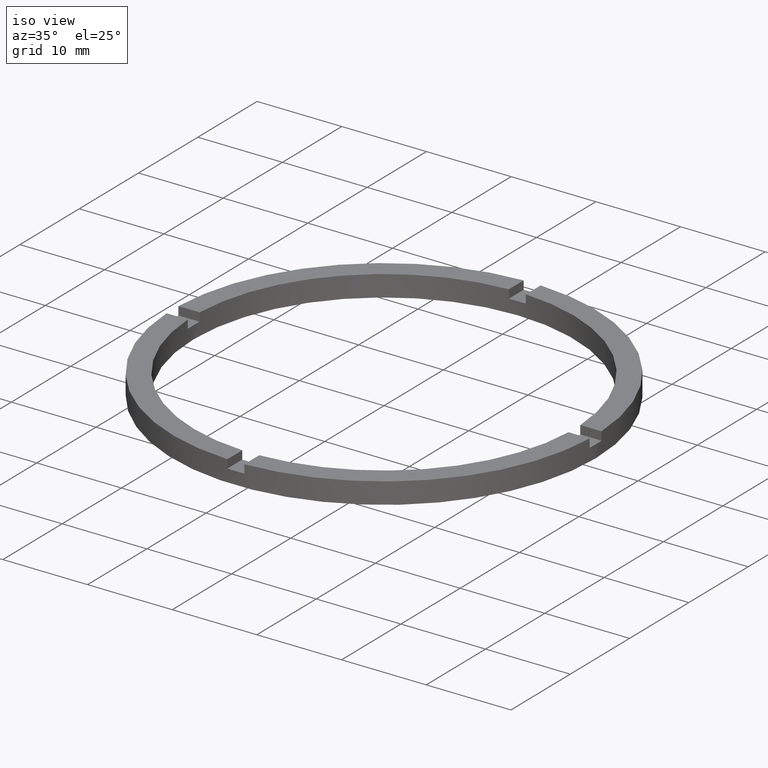
[diagram: clean part render]
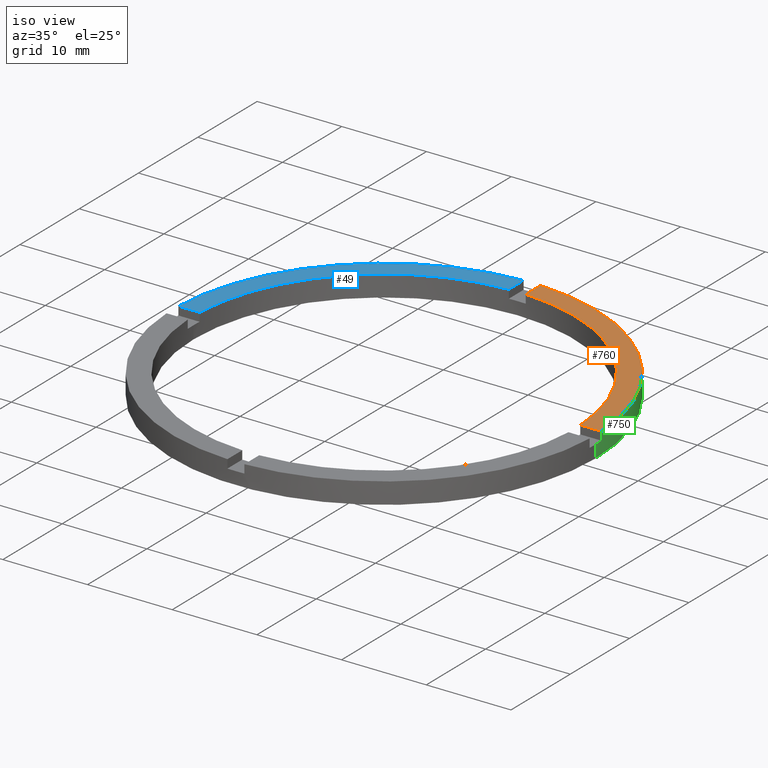
[diagram: same view with three faces highlighted in distinct colors, each labeled with its STEP entity id]
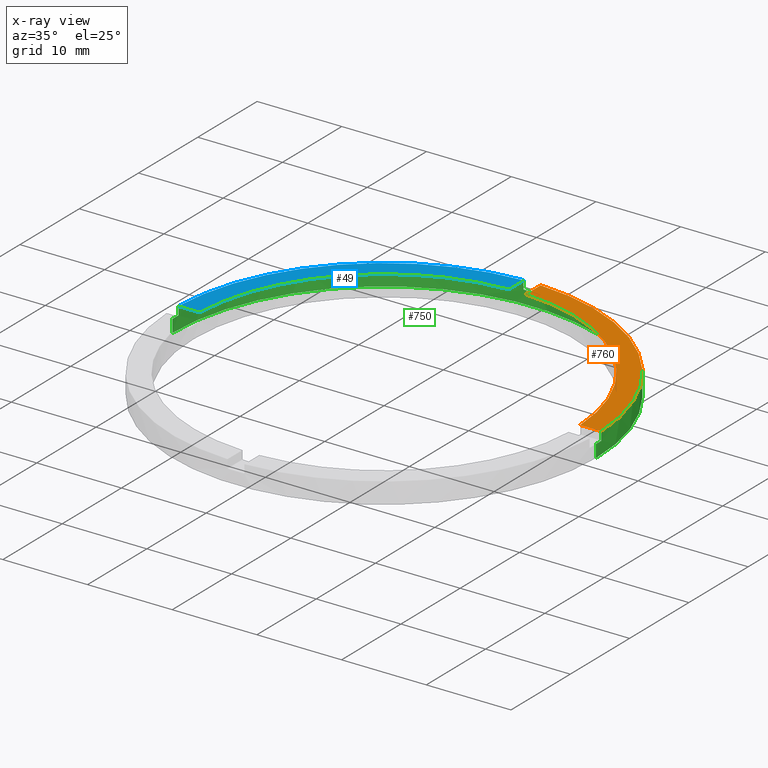
[diagram: x-ray of the same camera — body ghosted, the three highlighted faces saturated]
A machine part, iso view with three faces highlighted in distinct colors.
The next image is the same camera in x-ray (body ghosted, the three faces saturated) — at least one of them is partly hidden behind the body in this view.
Their STEP definitions:

[orange] entity #760 — the highlighted planar face has unit normal (0, 0, 1).
#12 = DIRECTION ( 'NONE',  ( 0.000000000000000000, 0.000000000000000000, 1.000000000000000000 ) ) ;
#25 = CARTESIAN_POINT ( 'NONE',  ( 0.000000000000000000, 0.000000000000000000, 2.500000000000000000 ) ) ;
#36 = CARTESIAN_POINT ( 'NONE',  ( 0.9999999999999740208, 22.47776679298902636, 2.500000000000000000 ) ) ;
#51 = ORIENTED_EDGE ( 'NONE', *, *, #321, .F. ) ;
#54 = AXIS2_PLACEMENT_3D ( 'NONE', #277, #686, #630 ) ;
#59 = DIRECTION ( 'NONE',  ( -1.000000000000000000, -4.336808689942018352E-17, -0.000000000000000000 ) ) ;
#67 = AXIS2_PLACEMENT_3D ( 'NONE', #25, #653, #518 ) ;
#86 = EDGE_CURVE ( 'NONE', #159, #110, #504, .T. ) ;
#89 = CARTESIAN_POINT ( 'NONE',  ( 24.97999199359360034, 0.9999999999998425704, 2.500000000000000000 ) ) ;
#110 = VERTEX_POINT ( 'NONE', #779 ) ;
#130 = EDGE_CURVE ( 'NONE', #159, #644, #756, .T. ) ;
#159 = VERTEX_POINT ( 'NONE', #89 ) ;
#160 = VECTOR ( 'NONE', #762, 1000.000000000000000 ) ;
#214 = FACE_OUTER_BOUND ( 'NONE', #502, .T. ) ;
#277 = CARTESIAN_POINT ( 'NONE',  ( 0.000000000000000000, 0.000000000000000000, 2.500000000000000000 ) ) ;
#296 = CARTESIAN_POINT ( 'NONE',  ( 14.99999999999999645, 0.9999999999998421263, 2.500000000000000000 ) ) ;
#321 = EDGE_CURVE ( 'NONE', #110, #643, #421, .T. ) ;
#326 = ORIENTED_EDGE ( 'NONE', *, *, #86, .F. ) ;
#347 = AXIS2_PLACEMENT_3D ( 'NONE', #718, #12, #462 ) ;
#365 = EDGE_CURVE ( 'NONE', #643, #644, #677, .T. ) ;
#421 = CIRCLE ( 'NONE', #347, 22.50000000000000355 ) ;
#462 = DIRECTION ( 'NONE',  ( 1.000000000000000000, 0.000000000000000000, 0.000000000000000000 ) ) ;
#497 = CARTESIAN_POINT ( 'NONE',  ( 0.9999999999999740208, 24.97999199359359679, 2.500000000000000000 ) ) ;
#502 = EDGE_LOOP ( 'NONE', ( #546, #51, #326, #709 ) ) ;
#504 = LINE ( 'NONE', #296, #755 ) ;
#518 = DIRECTION ( 'NONE',  ( 1.000000000000000000, 0.000000000000000000, -0.000000000000000000 ) ) ;
#546 = ORIENTED_EDGE ( 'NONE', *, *, #365, .F. ) ;
#562 = PLANE ( 'NONE',  #67 ) ;
#569 = CARTESIAN_POINT ( 'NONE',  ( 0.9999999999999740208, 15.00000000000000178, 2.500000000000000000 ) ) ;
#630 = DIRECTION ( 'NONE',  ( 1.000000000000000000, 0.000000000000000000, 0.000000000000000000 ) ) ;
#643 = VERTEX_POINT ( 'NONE', #36 ) ;
#644 = VERTEX_POINT ( 'NONE', #497 ) ;
#653 = DIRECTION ( 'NONE',  ( 0.000000000000000000, 0.000000000000000000, 1.000000000000000000 ) ) ;
#677 = LINE ( 'NONE', #569, #160 ) ;
#686 = DIRECTION ( 'NONE',  ( 0.000000000000000000, 0.000000000000000000, 1.000000000000000000 ) ) ;
#709 = ORIENTED_EDGE ( 'NONE', *, *, #130, .T. ) ;
#718 = CARTESIAN_POINT ( 'NONE',  ( 0.000000000000000000, 0.000000000000000000, 2.500000000000000000 ) ) ;
#755 = VECTOR ( 'NONE', #59, 1000.000000000000000 ) ;
#756 = CIRCLE ( 'NONE', #54, 25.00000000000000000 ) ;
#760 = ADVANCED_FACE ( 'NONE', ( #214 ), #562, .T. ) ;
#762 = DIRECTION ( 'NONE',  ( 0.000000000000000000, 1.000000000000000000, 0.000000000000000000 ) ) ;
#779 = CARTESIAN_POINT ( 'NONE',  ( 22.47776679298903346, 0.9999999999998423483, 2.500000000000000000 ) ) ;

[blue] entity #49 — the highlighted planar face has unit normal (0, 0, 1).
#2 = CARTESIAN_POINT ( 'NONE',  ( -22.47776679298902636, 0.9999999999999744649, 2.500000000000000000 ) ) ;
#22 = ORIENTED_EDGE ( 'NONE', *, *, #344, .T. ) ;
#43 = ORIENTED_EDGE ( 'NONE', *, *, #730, .F. ) ;
#49 = ADVANCED_FACE ( 'NONE', ( #715 ), #102, .T. ) ;
#73 = CARTESIAN_POINT ( 'NONE',  ( -1.000000000000025979, 24.97999199359359679, 2.500000000000000000 ) ) ;
#91 = EDGE_CURVE ( 'NONE', #410, #457, #235, .T. ) ;
#102 = PLANE ( 'NONE',  #288 ) ;
#111 = VERTEX_POINT ( 'NONE', #766 ) ;
#118 = CARTESIAN_POINT ( 'NONE',  ( 0.000000000000000000, 0.000000000000000000, 2.500000000000000000 ) ) ;
#119 = DIRECTION ( 'NONE',  ( 0.000000000000000000, 0.000000000000000000, 1.000000000000000000 ) ) ;
#156 = CIRCLE ( 'NONE', #584, 25.00000000000000000 ) ;
#167 = DIRECTION ( 'NONE',  ( -1.000000000000000000, -1.734723475976807341E-16, 0.000000000000000000 ) ) ;
#177 = CARTESIAN_POINT ( 'NONE',  ( -1.000000000000025979, 15.00000000000000178, 2.500000000000000000 ) ) ;
#186 = ORIENTED_EDGE ( 'NONE', *, *, #91, .F. ) ;
#187 = DIRECTION ( 'NONE',  ( -0.000000000000000000, -1.000000000000000000, -0.000000000000000000 ) ) ;
#211 = DIRECTION ( 'NONE',  ( 0.000000000000000000, 0.000000000000000000, 1.000000000000000000 ) ) ;
#212 = DIRECTION ( 'NONE',  ( 1.000000000000000000, 0.000000000000000000, 0.000000000000000000 ) ) ;
#235 = LINE ( 'NONE', #492, #491 ) ;
#288 = AXIS2_PLACEMENT_3D ( 'NONE', #490, #552, #733 ) ;
#305 = ORIENTED_EDGE ( 'NONE', *, *, #628, .F. ) ;
#331 = VERTEX_POINT ( 'NONE', #73 ) ;
#344 = EDGE_CURVE ( 'NONE', #331, #457, #156, .T. ) ;
#382 = CARTESIAN_POINT ( 'NONE',  ( -24.97999199359359679, 0.9999999999999740208, 2.500000000000000000 ) ) ;
#410 = VERTEX_POINT ( 'NONE', #2 ) ;
#449 = DIRECTION ( 'NONE',  ( 1.000000000000000000, 0.000000000000000000, 0.000000000000000000 ) ) ;
#457 = VERTEX_POINT ( 'NONE', #382 ) ;
#488 = CIRCLE ( 'NONE', #602, 22.50000000000000355 ) ;
#490 = CARTESIAN_POINT ( 'NONE',  ( 0.000000000000000000, 0.000000000000000000, 2.500000000000000000 ) ) ;
#491 = VECTOR ( 'NONE', #167, 1000.000000000000000 ) ;
#492 = CARTESIAN_POINT ( 'NONE',  ( -15.00000000000018652, 0.9999999999999756861, 2.500000000000000000 ) ) ;
#511 = EDGE_LOOP ( 'NONE', ( #43, #22, #186, #305 ) ) ;
#552 = DIRECTION ( 'NONE',  ( 0.000000000000000000, 0.000000000000000000, 1.000000000000000000 ) ) ;
#584 = AXIS2_PLACEMENT_3D ( 'NONE', #608, #119, #212 ) ;
#602 = AXIS2_PLACEMENT_3D ( 'NONE', #118, #211, #449 ) ;
#608 = CARTESIAN_POINT ( 'NONE',  ( 0.000000000000000000, 0.000000000000000000, 2.500000000000000000 ) ) ;
#628 = EDGE_CURVE ( 'NONE', #111, #410, #488, .T. ) ;
#715 = FACE_OUTER_BOUND ( 'NONE', #511, .T. ) ;
#730 = EDGE_CURVE ( 'NONE', #331, #111, #735, .T. ) ;
#733 = DIRECTION ( 'NONE',  ( 1.000000000000000000, 0.000000000000000000, -0.000000000000000000 ) ) ;
#735 = LINE ( 'NONE', #177, #744 ) ;
#744 = VECTOR ( 'NONE', #187, 1000.000000000000000 ) ;
#766 = CARTESIAN_POINT ( 'NONE',  ( -1.000000000000025979, 22.47776679298902636, 2.500000000000000000 ) ) ;

[green] entity #750 — the highlighted cylindrical surface (partial cylindrical patch) has radius 25 mm, axis along (-0, -0, -1).
#5 = CARTESIAN_POINT ( 'NONE',  ( 24.97999199359360034, 0.9999999999998425704, 2.500000000000000000 ) ) ;
#7 = VERTEX_POINT ( 'NONE', #402 ) ;
#21 = CARTESIAN_POINT ( 'NONE',  ( 25.00000000000000000, 3.061616997868383043E-15, 2.500000000000000000 ) ) ;
#31 = EDGE_CURVE ( 'NONE', #57, #7, #452, .T. ) ;
#35 = DIRECTION ( 'NONE',  ( 0.000000000000000000, 0.000000000000000000, 1.000000000000000000 ) ) ;
#38 = ORIENTED_EDGE ( 'NONE', *, *, #618, .T. ) ;
#52 = EDGE_CURVE ( 'NONE', #7, #375, #731, .T. ) ;
#54 = AXIS2_PLACEMENT_3D ( 'NONE', #277, #686, #630 ) ;
#57 = VERTEX_POINT ( 'NONE', #351 ) ;
#72 = EDGE_CURVE ( 'NONE', #159, #161, #192, .T. ) ;
#73 = CARTESIAN_POINT ( 'NONE',  ( -1.000000000000025979, 24.97999199359359679, 2.500000000000000000 ) ) ;
#82 = ORIENTED_EDGE ( 'NONE', *, *, #251, .T. ) ;
#87 = CARTESIAN_POINT ( 'NONE',  ( -1.000000000000025979, 24.97999199359359679, 1.500000000000000000 ) ) ;
#88 = CARTESIAN_POINT ( 'NONE',  ( -25.00000000000000000, 0.000000000000000000, 2.500000000000000000 ) ) ;
#89 = CARTESIAN_POINT ( 'NONE',  ( 24.97999199359360034, 0.9999999999998425704, 2.500000000000000000 ) ) ;
#92 = CARTESIAN_POINT ( 'NONE',  ( -24.97999199359359679, 0.9999999999999740208, 1.500000000000000000 ) ) ;
#93 = DIRECTION ( 'NONE',  ( -0.000000000000000000, -0.000000000000000000, -1.000000000000000000 ) ) ;
#101 = CARTESIAN_POINT ( 'NONE',  ( -24.97999199359359679, 0.9999999999999740208, 2.500000000000000000 ) ) ;
#108 = EDGE_CURVE ( 'NONE', #261, #254, #764, .T. ) ;
#119 = DIRECTION ( 'NONE',  ( 0.000000000000000000, 0.000000000000000000, 1.000000000000000000 ) ) ;
#123 = DIRECTION ( 'NONE',  ( 1.000000000000000000, 0.000000000000000000, 0.000000000000000000 ) ) ;
#126 = DIRECTION ( 'NONE',  ( 0.000000000000000000, -0.000000000000000000, 1.000000000000000000 ) ) ;
#130 = EDGE_CURVE ( 'NONE', #159, #644, #756, .T. ) ;
#148 = VECTOR ( 'NONE', #157, 1000.000000000000000 ) ;
#156 = CIRCLE ( 'NONE', #584, 25.00000000000000000 ) ;
#157 = DIRECTION ( 'NONE',  ( -0.000000000000000000, -0.000000000000000000, -1.000000000000000000 ) ) ;
#159 = VERTEX_POINT ( 'NONE', #89 ) ;
#161 = VERTEX_POINT ( 'NONE', #380 ) ;
#171 = ORIENTED_EDGE ( 'NONE', *, *, #260, .F. ) ;
#178 = CARTESIAN_POINT ( 'NONE',  ( 0.000000000000000000, 0.000000000000000000, 1.500000000000000000 ) ) ;
#180 = VECTOR ( 'NONE', #412, 1000.000000000000000 ) ;
#192 = LINE ( 'NONE', #5, #206 ) ;
#206 = VECTOR ( 'NONE', #93, 1000.000000000000000 ) ;
#212 = DIRECTION ( 'NONE',  ( 1.000000000000000000, 0.000000000000000000, 0.000000000000000000 ) ) ;
#217 = CARTESIAN_POINT ( 'NONE',  ( 0.9999999999999740208, 24.97999199359359679, 2.500000000000000000 ) ) ;
#220 = DIRECTION ( 'NONE',  ( 1.000000000000000000, 0.000000000000000000, 0.000000000000000000 ) ) ;
#228 = CARTESIAN_POINT ( 'NONE',  ( 0.000000000000000000, 0.000000000000000000, 1.500000000000000000 ) ) ;
#248 = CARTESIAN_POINT ( 'NONE',  ( 0.000000000000000000, 0.000000000000000000, 0.000000000000000000 ) ) ;
#251 = EDGE_CURVE ( 'NONE', #510, #644, #748, .T. ) ;
#254 = VERTEX_POINT ( 'NONE', #330 ) ;
#260 = EDGE_CURVE ( 'NONE', #57, #161, #751, .T. ) ;
#261 = VERTEX_POINT ( 'NONE', #92 ) ;
#277 = CARTESIAN_POINT ( 'NONE',  ( 0.000000000000000000, 0.000000000000000000, 2.500000000000000000 ) ) ;
#281 = DIRECTION ( 'NONE',  ( 0.000000000000000000, 0.000000000000000000, 1.000000000000000000 ) ) ;
#287 = EDGE_CURVE ( 'NONE', #254, #375, #682, .T. ) ;
#308 = DIRECTION ( 'NONE',  ( -0.000000000000000000, -0.000000000000000000, -1.000000000000000000 ) ) ;
#309 = DIRECTION ( 'NONE',  ( 0.000000000000000000, 0.000000000000000000, 1.000000000000000000 ) ) ;
#330 = CARTESIAN_POINT ( 'NONE',  ( -25.00000000000000000, 0.000000000000000000, 1.500000000000000000 ) ) ;
#331 = VERTEX_POINT ( 'NONE', #73 ) ;
#344 = EDGE_CURVE ( 'NONE', #331, #457, #156, .T. ) ;
#349 = AXIS2_PLACEMENT_3D ( 'NONE', #580, #35, #123 ) ;
#351 = CARTESIAN_POINT ( 'NONE',  ( 25.00000000000000000, 3.061616997868383043E-15, 1.500000000000000000 ) ) ;
#364 = AXIS2_PLACEMENT_3D ( 'NONE', #601, #308, #638 ) ;
#375 = VERTEX_POINT ( 'NONE', #523 ) ;
#380 = CARTESIAN_POINT ( 'NONE',  ( 24.97999199359360034, 0.9999999999998425704, 1.500000000000000000 ) ) ;
#382 = CARTESIAN_POINT ( 'NONE',  ( -24.97999199359359679, 0.9999999999999740208, 2.500000000000000000 ) ) ;
#393 = CIRCLE ( 'NONE', #625, 25.00000000000000000 ) ;
#402 = CARTESIAN_POINT ( 'NONE',  ( 25.00000000000000000, 3.061616997868383043E-15, 0.000000000000000000 ) ) ;
#407 = VECTOR ( 'NONE', #572, 1000.000000000000000 ) ;
#412 = DIRECTION ( 'NONE',  ( -0.000000000000000000, -0.000000000000000000, -1.000000000000000000 ) ) ;
#426 = VERTEX_POINT ( 'NONE', #87 ) ;
#452 = LINE ( 'NONE', #21, #180 ) ;
#457 = VERTEX_POINT ( 'NONE', #382 ) ;
#463 = ORIENTED_EDGE ( 'NONE', *, *, #287, .F. ) ;
#464 = LINE ( 'NONE', #101, #472 ) ;
#471 = ORIENTED_EDGE ( 'NONE', *, *, #72, .T. ) ;
#472 = VECTOR ( 'NONE', #558, 1000.000000000000000 ) ;
#476 = CYLINDRICAL_SURFACE ( 'NONE', #364, 25.00000000000000000 ) ;
#487 = ORIENTED_EDGE ( 'NONE', *, *, #524, .F. ) ;
#489 = VECTOR ( 'NONE', #281, 1000.000000000000000 ) ;
#497 = CARTESIAN_POINT ( 'NONE',  ( 0.9999999999999740208, 24.97999199359359679, 2.500000000000000000 ) ) ;
#505 = DIRECTION ( 'NONE',  ( 0.000000000000000000, 0.000000000000000000, 1.000000000000000000 ) ) ;
#510 = VERTEX_POINT ( 'NONE', #565 ) ;
#523 = CARTESIAN_POINT ( 'NONE',  ( -25.00000000000000000, 0.000000000000000000, 0.000000000000000000 ) ) ;
#524 = EDGE_CURVE ( 'NONE', #510, #426, #393, .T. ) ;
#542 = ORIENTED_EDGE ( 'NONE', *, *, #108, .F. ) ;
#548 = ORIENTED_EDGE ( 'NONE', *, *, #757, .T. ) ;
#550 = ORIENTED_EDGE ( 'NONE', *, *, #130, .F. ) ;
#554 = AXIS2_PLACEMENT_3D ( 'NONE', #178, #309, #705 ) ;
#558 = DIRECTION ( 'NONE',  ( 0.000000000000000000, 0.000000000000000000, 1.000000000000000000 ) ) ;
#565 = CARTESIAN_POINT ( 'NONE',  ( 0.9999999999999740208, 24.97999199359359679, 1.500000000000000000 ) ) ;
#572 = DIRECTION ( 'NONE',  ( -0.000000000000000000, -0.000000000000000000, -1.000000000000000000 ) ) ;
#576 = CARTESIAN_POINT ( 'NONE',  ( -1.000000000000025979, 24.97999199359359679, 2.500000000000000000 ) ) ;
#580 = CARTESIAN_POINT ( 'NONE',  ( 0.000000000000000000, 0.000000000000000000, 1.500000000000000000 ) ) ;
#581 = EDGE_LOOP ( 'NONE', ( #171, #746, #592, #463, #542, #548, #716, #38, #487, #82, #550, #471 ) ) ;
#584 = AXIS2_PLACEMENT_3D ( 'NONE', #608, #119, #212 ) ;
#592 = ORIENTED_EDGE ( 'NONE', *, *, #52, .T. ) ;
#601 = CARTESIAN_POINT ( 'NONE',  ( 0.000000000000000000, 0.000000000000000000, 2.500000000000000000 ) ) ;
#608 = CARTESIAN_POINT ( 'NONE',  ( 0.000000000000000000, 0.000000000000000000, 2.500000000000000000 ) ) ;
#618 = EDGE_CURVE ( 'NONE', #331, #426, #674, .T. ) ;
#619 = AXIS2_PLACEMENT_3D ( 'NONE', #248, #505, #724 ) ;
#625 = AXIS2_PLACEMENT_3D ( 'NONE', #228, #126, #220 ) ;
#630 = DIRECTION ( 'NONE',  ( 1.000000000000000000, 0.000000000000000000, 0.000000000000000000 ) ) ;
#638 = DIRECTION ( 'NONE',  ( -1.000000000000000000, 0.000000000000000000, 0.000000000000000000 ) ) ;
#644 = VERTEX_POINT ( 'NONE', #497 ) ;
#674 = LINE ( 'NONE', #576, #407 ) ;
#682 = LINE ( 'NONE', #88, #148 ) ;
#686 = DIRECTION ( 'NONE',  ( 0.000000000000000000, 0.000000000000000000, 1.000000000000000000 ) ) ;
#705 = DIRECTION ( 'NONE',  ( 1.000000000000000000, 0.000000000000000000, 0.000000000000000000 ) ) ;
#716 = ORIENTED_EDGE ( 'NONE', *, *, #344, .F. ) ;
#724 = DIRECTION ( 'NONE',  ( 1.000000000000000000, 0.000000000000000000, 0.000000000000000000 ) ) ;
#731 = CIRCLE ( 'NONE', #619, 25.00000000000000000 ) ;
#741 = FACE_OUTER_BOUND ( 'NONE', #581, .T. ) ;
#746 = ORIENTED_EDGE ( 'NONE', *, *, #31, .T. ) ;
#748 = LINE ( 'NONE', #217, #489 ) ;
#750 = ADVANCED_FACE ( 'NONE', ( #741 ), #476, .T. ) ;
#751 = CIRCLE ( 'NONE', #554, 25.00000000000000000 ) ;
#756 = CIRCLE ( 'NONE', #54, 25.00000000000000000 ) ;
#757 = EDGE_CURVE ( 'NONE', #261, #457, #464, .T. ) ;
#764 = CIRCLE ( 'NONE', #349, 25.00000000000000000 ) ;